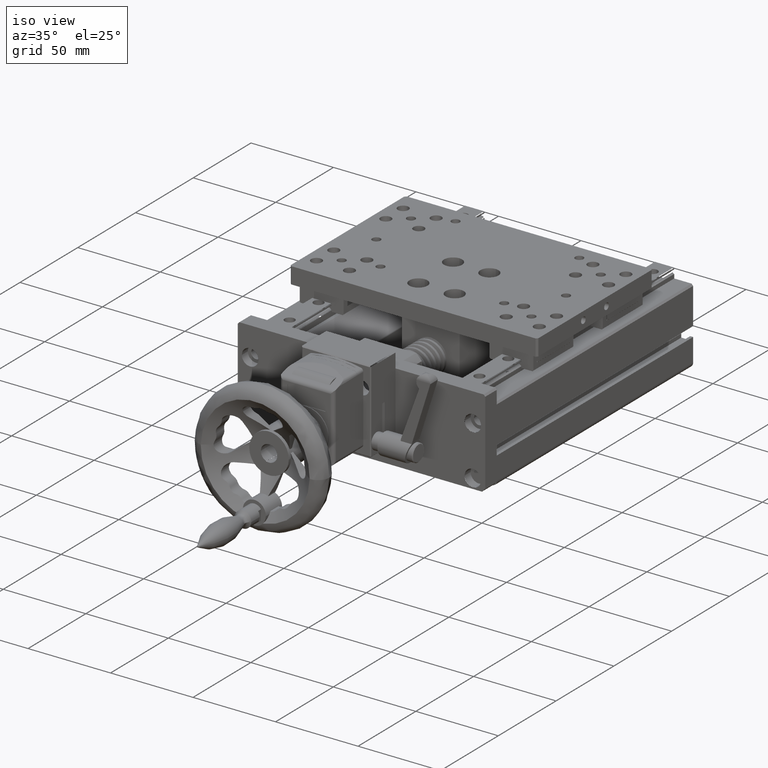
[diagram: clean part render]
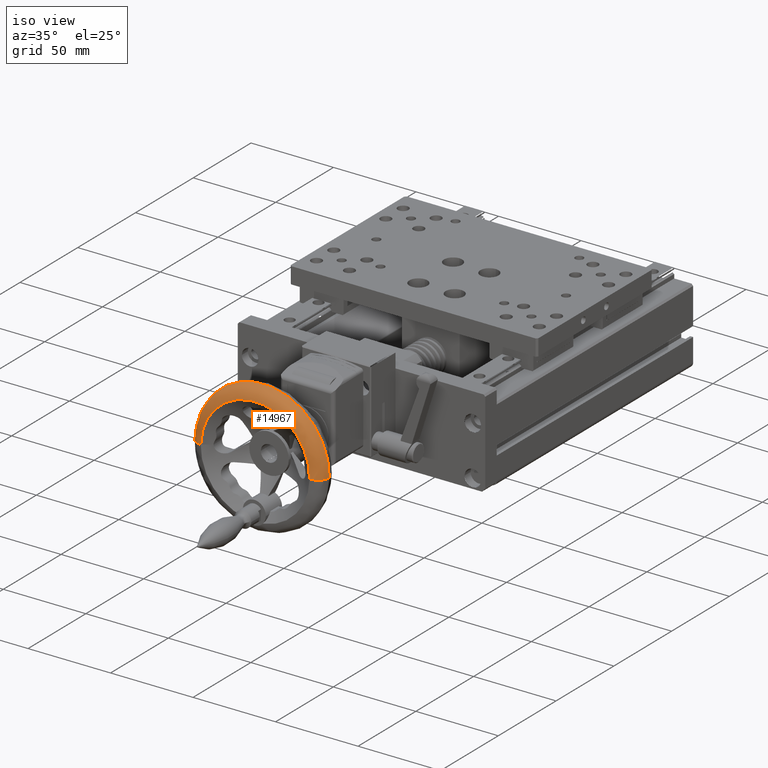
[diagram: same view with one face highlighted and labeled with its STEP entity id]
A machine part, iso view. The second image highlights one B-rep face of the part: STEP entity #14967.
In plain terms, the highlighted face is a freeform B-spline surface patch.
Its self-contained STEP definition (entity closure, byte-faithful):
#434 = CARTESIAN_POINT ( 'NONE',  ( -27.82647947996278859, -178.0472645979107256, 9.500000000003385736 ) ) ;
#518 = EDGE_CURVE ( 'NONE', #17906, #15251, #29143, .T. ) ;
#727 = CARTESIAN_POINT ( 'NONE',  ( 13.66106865805180526, -178.0472645979108961, 88.73877428062891681 ) ) ;
#1002 = CARTESIAN_POINT ( 'NONE',  ( -60.82072043534120098, -185.0472645979106687, 10.11649312924499000 ) ) ;
#1093 = EDGE_CURVE ( 'NONE', #21667, #17906, #3532, .T. ) ;
#1444 = AXIS2_PLACEMENT_3D ( 'NONE', #16985, #29489, #1991 ) ;
#1991 = DIRECTION ( 'NONE',  ( -0.9998254834963283821, 3.965082230804123514E-15, 0.01868160997701857201 ) ) ;
#2706 = CIRCLE ( 'NONE', #3766, 40.00000000000000000 ) ;
#2877 = CARTESIAN_POINT ( 'NONE',  ( -60.82072043534120098, -185.0472645979106119, 10.11649312924498822 ) ) ;
#3532 = CIRCLE ( 'NONE', #1444, 7.000000000000012434 ) ;
#3766 = AXIS2_PLACEMENT_3D ( 'NONE', #434, #20191, #7536 ) ;
#5032 = CARTESIAN_POINT ( 'NONE',  ( 5.167761475415569628, -185.0472645979108961, 8.883506870761792129 ) ) ;
#5864 = CARTESIAN_POINT ( 'NONE',  ( -66.32497002165446531, -182.1477696612990655, 90.23330307879038514 ) ) ;
#6019 = CARTESIAN_POINT ( 'NONE',  ( -67.81949881981593364, -178.0472645979105550, 10.24726439908412168 ) ) ;
#6107 = CARTESIAN_POINT ( 'NONE',  ( -67.81949881981593364, -178.0472645979105550, 10.24726439908412345 ) ) ;
#7536 = DIRECTION ( 'NONE',  ( -0.9998254834963283821, 4.163336342344337027E-15, 0.01868160997701849915 ) ) ;
#8470 = CARTESIAN_POINT ( 'NONE',  ( -67.81949881981594785, -182.1477696612991224, 10.24726439908412345 ) ) ;
#8633 = CARTESIAN_POINT ( 'NONE',  ( 12.16653985989032982, -182.1477696612994350, 8.752735600922656900 ) ) ;
#9265 = AXIS2_PLACEMENT_3D ( 'NONE', #22233, #14814, #14659 ) ;
#10117 = ORIENTED_EDGE ( 'NONE', *, *, #31957, .F. ) ;
#10449 = CARTESIAN_POINT ( 'NONE',  ( -27.82647947996281701, -185.0472645979107540, 9.500000000003389289 ) ) ;
#10611 = FACE_OUTER_BOUND ( 'NONE', #12787, .T. ) ;
#10678 = VERTEX_POINT ( 'NONE', #11335 ) ;
#11335 = CARTESIAN_POINT ( 'NONE',  ( 12.16653985989034759, -178.0472645979108961, 8.752735600922653347 ) ) ;
#11612 = ORIENTED_EDGE ( 'NONE', *, *, #518, .T. ) ;
#12787 = EDGE_LOOP ( 'NONE', ( #10117, #20855, #23459, #11612 ) ) ;
#13242 = CARTESIAN_POINT ( 'NONE',  ( -63.53431556183357287, -185.0472645979108108, 84.38115799146792995 ) ) ;
#13302 =( BOUNDED_SURFACE ( )  B_SPLINE_SURFACE ( 3, 3, ( 
 ( #6019, #31171, #727, #22985 ),
 ( #8470, #5864, #18494, #8633 ),
 ( #18666, #13242, #25923, #28740 ),
 ( #2877, #28575, #23294, #20646 ) ),
 .UNSPECIFIED., .F., .F., .F. ) 
 B_SPLINE_SURFACE_WITH_KNOTS ( ( 4, 4 ),
 ( 4, 4 ),
 ( 0.000000000000000000, 1.000000000000000000 ),
 ( 0.000000000000000000, 1.000000000000000000 ),
 .UNSPECIFIED. ) 
 GEOMETRIC_REPRESENTATION_ITEM ( )  RATIONAL_B_SPLINE_SURFACE ( (
 ( 1.000000000000000000, 0.3333333333333334259, 0.3333333333333334259, 1.000000000000000000),
 ( 0.8047378541243501715, 0.2682459513747834645, 0.2682459513747834645, 0.8047378541243501715),
 ( 0.8047378541243501715, 0.2682459513747834645, 0.2682459513747834645, 0.8047378541243501715),
 ( 1.000000000000000000, 0.3333333333333334259, 0.3333333333333334259, 1.000000000000000000) ) ) 
 REPRESENTATION_ITEM ( '' )  SURFACE ( )  );
#14659 = DIRECTION ( 'NONE',  ( 0.9998254834963283821, -3.965082230804125092E-15, -0.01868160997701833262 ) ) ;
#14814 = DIRECTION ( 'NONE',  ( -0.01868160997701834997, -3.885780586188050850E-16, -0.9998254834963282711 ) ) ;
#14948 = AXIS2_PLACEMENT_3D ( 'NONE', #10449, #20980, #31007 ) ;
#14967 = ADVANCED_FACE ( 'NONE', ( #10611 ), #13302, .T. ) ;
#15251 = VERTEX_POINT ( 'NONE', #5032 ) ;
#16985 = CARTESIAN_POINT ( 'NONE',  ( -60.82072043534162020, -178.0472645979105835, 10.11649312924499533 ) ) ;
#17906 = VERTEX_POINT ( 'NONE', #1002 ) ;
#18494 = CARTESIAN_POINT ( 'NONE',  ( 13.66106865805179282, -182.1477696612994350, 88.73877428062891681 ) ) ;
#18666 = CARTESIAN_POINT ( 'NONE',  ( -64.92050989292279439, -185.0472645979108677, 10.19309716554800183 ) ) ;
#19297 = CIRCLE ( 'NONE', #9265, 7.000000000000008882 ) ;
#20191 = DIRECTION ( 'NONE',  ( 4.315567623387590858E-15, 1.000000000000000000, -4.692817071911560187E-16 ) ) ;
#20646 = CARTESIAN_POINT ( 'NONE',  ( 5.167761475415560746, -185.0472645979108961, 8.883506870761793905 ) ) ;
#20855 = ORIENTED_EDGE ( 'NONE', *, *, #23903, .F. ) ;
#20980 = DIRECTION ( 'NONE',  ( 4.315567623387590858E-15, 1.000000000000000000, -4.692817071911560187E-16 ) ) ;
#21667 = VERTEX_POINT ( 'NONE', #6107 ) ;
#22233 = CARTESIAN_POINT ( 'NONE',  ( 5.167761475416039474, -178.0472645979108961, 8.883506870761781471 ) ) ;
#22985 = CARTESIAN_POINT ( 'NONE',  ( 12.16653985989034403, -178.0472645979109245, 8.752735600922655124 ) ) ;
#23294 = CARTESIAN_POINT ( 'NONE',  ( 6.400747733898752401, -185.0472645979108961, 74.87198878151855297 ) ) ;
#23459 = ORIENTED_EDGE ( 'NONE', *, *, #1093, .T. ) ;
#23903 = EDGE_CURVE ( 'NONE', #21667, #10678, #2706, .T. ) ;
#25923 = CARTESIAN_POINT ( 'NONE',  ( 10.65374526408636591, -185.0472645979111519, 82.99496366037871553 ) ) ;
#28575 = CARTESIAN_POINT ( 'NONE',  ( -59.58773417685800666, -185.0472645979105550, 76.10497504000174729 ) ) ;
#28740 = CARTESIAN_POINT ( 'NONE',  ( 9.267550932997151492, -185.0472645979111803, 8.806902834458782081 ) ) ;
#29143 = CIRCLE ( 'NONE', #14948, 33.00000000000002132 ) ;
#29489 = DIRECTION ( 'NONE',  ( 0.01868160997701847140, 3.885780586188043454E-16, 0.9998254834963282711 ) ) ;
#31007 = DIRECTION ( 'NONE',  ( -0.9998254834963283821, 4.205390244792256874E-15, 0.01868160997701846446 ) ) ;
#31171 = CARTESIAN_POINT ( 'NONE',  ( -66.32497002165445110, -178.0472645979105266, 90.23330307879037093 ) ) ;
#31957 = EDGE_CURVE ( 'NONE', #10678, #15251, #19297, .T. ) ;